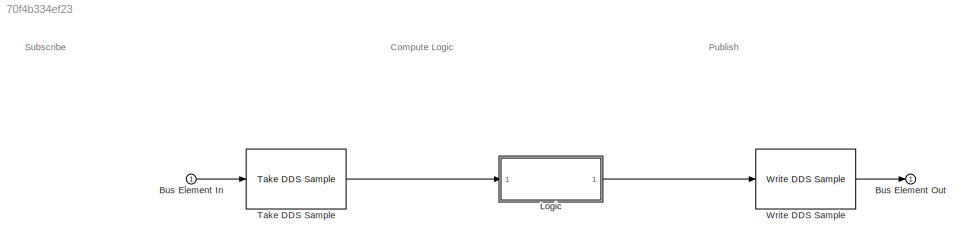
MODEL slx_70f4b334ef23
KIND model
CONFIG AbsTol = auto
CONFIG EnableMultiTasking = off
CONFIG FixedStep = auto
CONFIG MaxStep = auto
CONFIG MinStep = auto
CONFIG RelTol = 1e-3
CONFIG SampleTimeConstraint = Unconstrained
CONFIG SolverName = FixedStepAuto
CONFIG StartTime = 0.0
CONFIG StopTime = inf
BLOCK [Inport] Bus Element In
BLOCK [Outport] Bus Element Out
  InputPortMessageModes = m
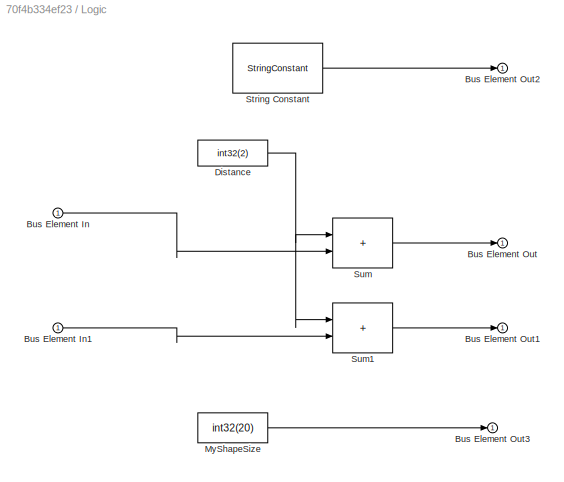
BLOCK [SubSystem] Logic
BLOCK [Inport] Logic/Bus Element In
BLOCK [Inport] Logic/Bus Element In1
BLOCK [Outport] Logic/Bus Element Out
BLOCK [Outport] Logic/Bus Element Out1
BLOCK [Outport] Logic/Bus Element Out2
BLOCK [Outport] Logic/Bus Element Out3
BLOCK [Constant] Logic/Distance
  Value = int32(2)
BLOCK [Constant] Logic/MyShapeSize
  Value = int32(20)
BLOCK [StringConstant] Logic/String Constant
  String = "Red"
BLOCK [Sum] Logic/Sum
  IconShape = rectangular
  Inputs = |++
BLOCK [Sum] Logic/Sum1
  IconShape = rectangular
  Inputs = |++
BLOCK [Reference] Take DDS Sample  REF=ddsblock/Take DDS Sample
  LibrarySourceBlock = ddslib/Take DDS Sample
  SourceBlock = ddsblock/Take DDS Sample
  SourceType = Take DDS Sample
BLOCK [Reference] Write DDS Sample  REF=ddsblock/Write DDS Sample
  LibrarySourceBlock = ddslib/Write DDS Sample
  SourceBlock = ddsblock/Write DDS Sample
  SourceType = Write DDS Sample
ANNOTATION (root): Compute Logic
ANNOTATION (root): Publish
ANNOTATION (root): Subscribe
LINE Bus Element In:1 -> Take DDS Sample:1
LINE Logic/Bus Element In1:1 -> Logic/Sum1:2
LINE Logic/Bus Element In:1 -> Logic/Sum:2
NET Logic/Distance:1 -> Logic/Sum1:1, Logic/Sum:1
LINE Logic/MyShapeSize:1 -> Logic/Bus Element Out3:1
LINE Logic/String Constant:1 -> Logic/Bus Element Out2:1
LINE Logic/Sum1:1 -> Logic/Bus Element Out1:1
LINE Logic/Sum:1 -> Logic/Bus Element Out:1
LINE Logic:1 -> Write DDS Sample:1
LINE Take DDS Sample:1 -> Logic:1
LINE Write DDS Sample:1 -> Bus Element Out:1
note: NET lines group one-source signal fan-out (src -> all destinations, sorted); 1:1 wires keep LINE
